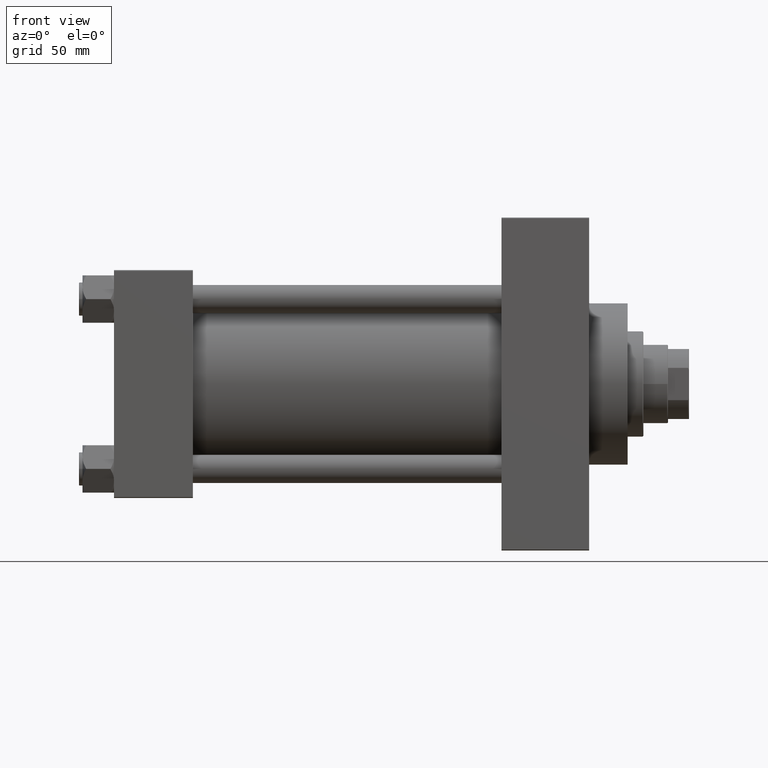
[diagram: clean part render]
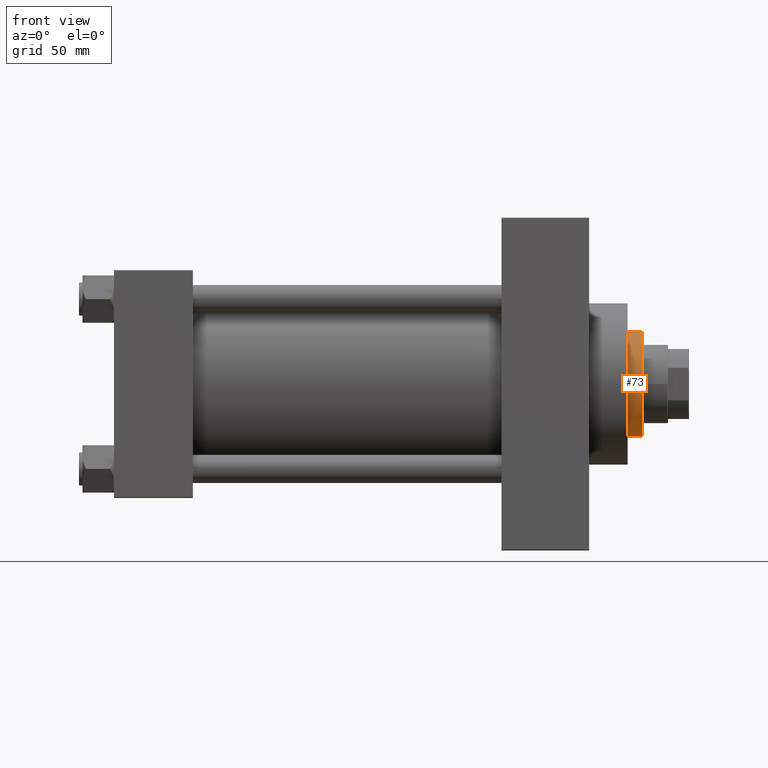
[diagram: same view with one face highlighted and labeled with its STEP entity id]
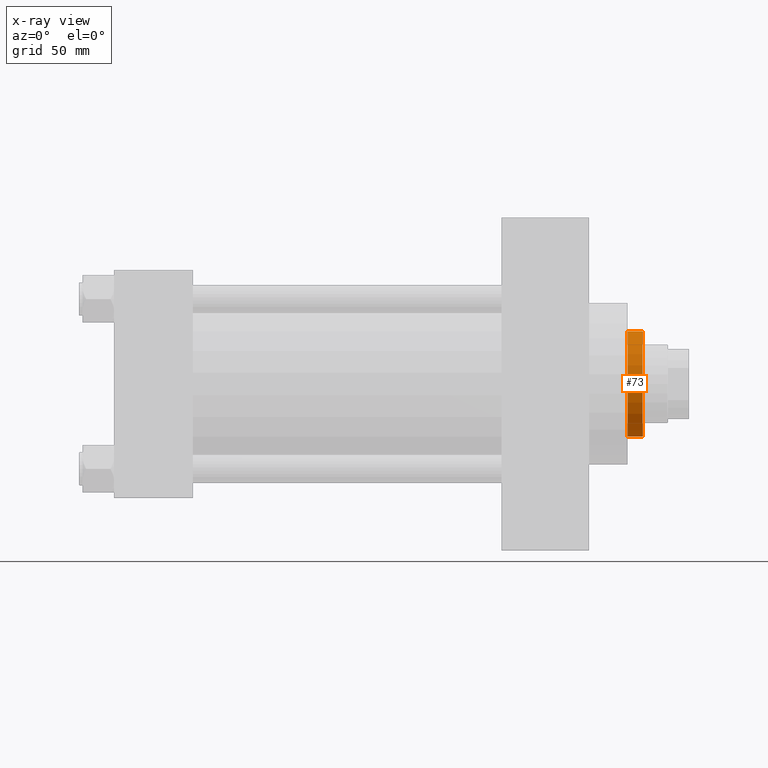
[diagram: x-ray of the same camera — body ghosted, the highlighted face saturated]
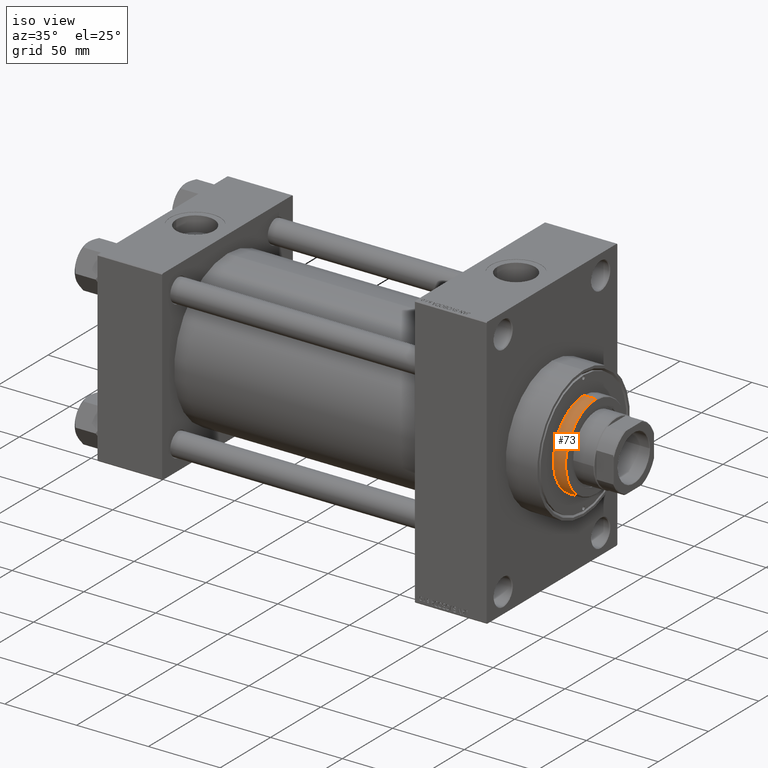
[diagram: same view with one face highlighted and labeled with its STEP entity id]
A machine part, front view. The second image highlights one B-rep face of the part: STEP entity #73.
The next image is the same camera in x-ray: the body ghosted, the highlighted face saturated — about 0% of this face is hidden behind the body in this view.
A second angle (iso view) of the same face is appended — the face is thin or edge-on in the first view.
In plain terms, the highlighted cylindrical surface (partial cylindrical patch) has radius 30 mm, axis along (-1, 0, 0).
Its self-contained STEP definition (entity closure, byte-faithful):
#73 = ADVANCED_FACE ( 'NONE', ( #677 ), #29470, .T. ) ;
#677 = FACE_OUTER_BOUND ( 'NONE', #8670, .T. ) ;
#742 = ORIENTED_EDGE ( 'NONE', *, *, #11526, .T. ) ;
#1621 = AXIS2_PLACEMENT_3D ( 'NONE', #27068, #5546, #5306 ) ;
#2387 = CARTESIAN_POINT ( 'NONE',  ( 30.00000000000000000, 3.673940397442059178E-15, 52.25999999999999801 ) ) ;
#4860 = VECTOR ( 'NONE', #38772, 1000.000000000000000 ) ;
#5306 = DIRECTION ( 'NONE',  ( 1.000000000000000000, 0.000000000000000000, 0.000000000000000000 ) ) ;
#5546 = DIRECTION ( 'NONE',  ( 0.000000000000000000, 0.000000000000000000, 1.000000000000000000 ) ) ;
#7014 = CIRCLE ( 'NONE', #1621, 30.00000000000000000 ) ;
#7547 = DIRECTION ( 'NONE',  ( 1.000000000000000000, 0.000000000000000000, 0.000000000000000000 ) ) ;
#7568 = VERTEX_POINT ( 'NONE', #23337 ) ;
#8670 = EDGE_LOOP ( 'NONE', ( #42766, #742, #23038, #22531 ) ) ;
#9627 = DIRECTION ( 'NONE',  ( -0.000000000000000000, -0.000000000000000000, -1.000000000000000000 ) ) ;
#10250 = CARTESIAN_POINT ( 'NONE',  ( -30.00000000000000000, 0.000000000000000000, 51.75999999999999091 ) ) ;
#10933 = CARTESIAN_POINT ( 'NONE',  ( 0.000000000000000000, 0.000000000000000000, 51.75999999999999091 ) ) ;
#11526 = EDGE_CURVE ( 'NONE', #31395, #36702, #42809, .T. ) ;
#17435 = EDGE_CURVE ( 'NONE', #19149, #31395, #35340, .T. ) ;
#19149 = VERTEX_POINT ( 'NONE', #10250 ) ;
#19864 = LINE ( 'NONE', #46762, #4860 ) ;
#22207 = CARTESIAN_POINT ( 'NONE',  ( 0.000000000000000000, 0.000000000000000000, 52.25999999999999801 ) ) ;
#22209 = AXIS2_PLACEMENT_3D ( 'NONE', #10933, #22542, #7547 ) ;
#22531 = ORIENTED_EDGE ( 'NONE', *, *, #37082, .F. ) ;
#22542 = DIRECTION ( 'NONE',  ( 0.000000000000000000, 0.000000000000000000, -1.000000000000000000 ) ) ;
#22687 = DIRECTION ( 'NONE',  ( -0.000000000000000000, -0.000000000000000000, -1.000000000000000000 ) ) ;
#23038 = ORIENTED_EDGE ( 'NONE', *, *, #28808, .T. ) ;
#23337 = CARTESIAN_POINT ( 'NONE',  ( -30.00000000000000000, 0.000000000000000000, 43.25999999999999801 ) ) ;
#27068 = CARTESIAN_POINT ( 'NONE',  ( 0.000000000000000000, 0.000000000000000000, 43.25999999999999801 ) ) ;
#28808 = EDGE_CURVE ( 'NONE', #36702, #7568, #7014, .T. ) ;
#29470 = CYLINDRICAL_SURFACE ( 'NONE', #44721, 30.00000000000000000 ) ;
#31395 = VERTEX_POINT ( 'NONE', #46526 ) ;
#35340 = CIRCLE ( 'NONE', #22209, 30.00000000000000000 ) ;
#36702 = VERTEX_POINT ( 'NONE', #41308 ) ;
#37082 = EDGE_CURVE ( 'NONE', #19149, #7568, #19864, .T. ) ;
#37947 = DIRECTION ( 'NONE',  ( -1.000000000000000000, 0.000000000000000000, 0.000000000000000000 ) ) ;
#38772 = DIRECTION ( 'NONE',  ( -0.000000000000000000, -0.000000000000000000, -1.000000000000000000 ) ) ;
#41308 = CARTESIAN_POINT ( 'NONE',  ( 30.00000000000000000, 3.673940397442059178E-15, 43.25999999999999801 ) ) ;
#42766 = ORIENTED_EDGE ( 'NONE', *, *, #17435, .T. ) ;
#42809 = LINE ( 'NONE', #2387, #45774 ) ;
#44721 = AXIS2_PLACEMENT_3D ( 'NONE', #22207, #22687, #37947 ) ;
#45774 = VECTOR ( 'NONE', #9627, 1000.000000000000000 ) ;
#46526 = CARTESIAN_POINT ( 'NONE',  ( 30.00000000000000000, 3.673940397442059178E-15, 51.75999999999999091 ) ) ;
#46762 = CARTESIAN_POINT ( 'NONE',  ( -30.00000000000000000, 0.000000000000000000, 52.25999999999999801 ) ) ;